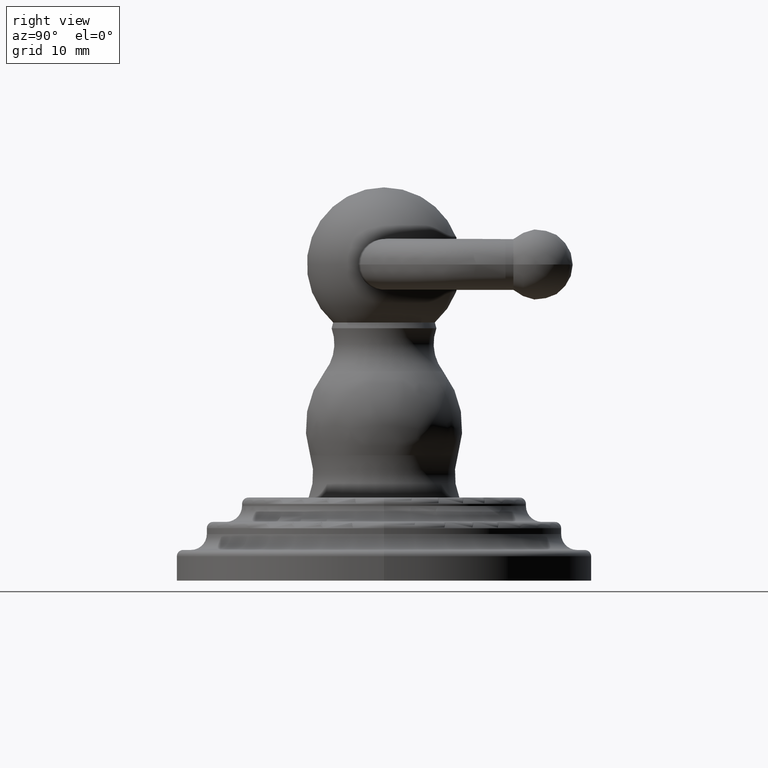
[diagram: clean part render]
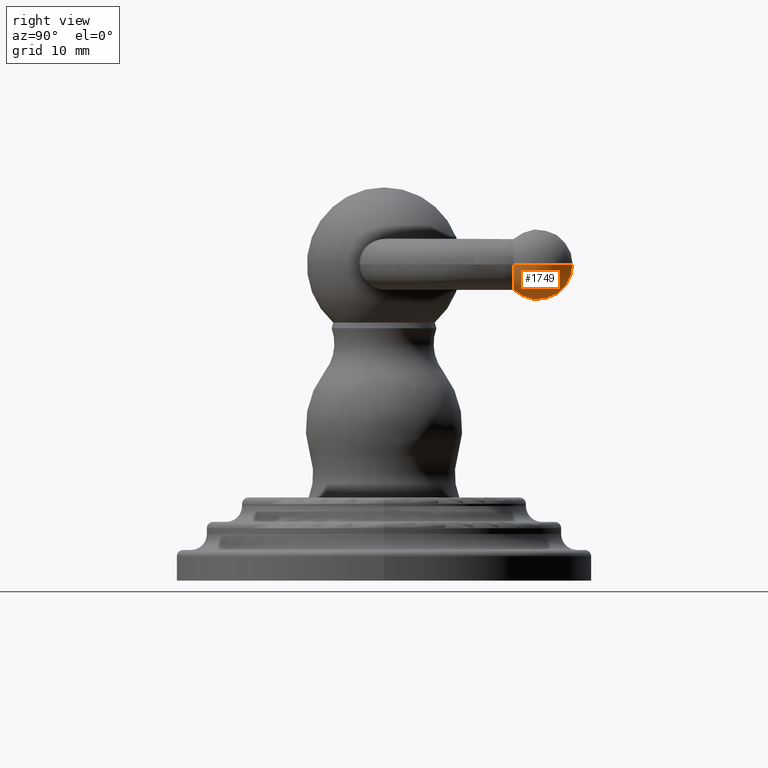
[diagram: same view with one face highlighted and labeled with its STEP entity id]
A machine part, right view. The second image highlights one B-rep face of the part: STEP entity #1749.
In plain terms, the highlighted spherical surface has radius 5.4991 mm.
Its self-contained STEP definition (entity closure, byte-faithful):
#738=CARTESIAN_POINT('',(1.1905E0,7.969537109181E-1,1.947E0));
#739=DIRECTION('',(0.E0,1.E0,0.E0));
#740=DIRECTION('',(1.E0,0.E0,0.E0));
#741=AXIS2_PLACEMENT_3D('',#738,#739,#740);
#761=CARTESIAN_POINT('',(1.1905E0,9.455E-1,1.947E0));
#762=DIRECTION('',(0.E0,0.E0,1.E0));
#763=DIRECTION('',(7.274826789838E-1,-6.861260465676E-1,0.E0));
#764=AXIS2_PLACEMENT_3D('',#761,#762,#763);
#769=CARTESIAN_POINT('',(1.1905E0,9.455E-1,1.947E0));
#770=DIRECTION('',(0.E0,0.E0,-1.E0));
#771=DIRECTION('',(-7.274826789838E-1,-6.861260465676E-1,0.E0));
#772=AXIS2_PLACEMENT_3D('',#769,#770,#771);
#948=CARTESIAN_POINT('',(1.033E0,7.969537109181E-1,1.947E0));
#949=CARTESIAN_POINT('',(1.348E0,7.969537109181E-1,1.947E0));
#950=VERTEX_POINT('',#948);
#951=VERTEX_POINT('',#949);
#952=CARTESIAN_POINT('',(1.1905E0,1.162E0,1.947E0));
#953=VERTEX_POINT('',#952);
#1737=CARTESIAN_POINT('',(1.1905E0,9.455E-1,1.947E0));
#1738=DIRECTION('',(0.E0,-1.E0,0.E0));
#1739=DIRECTION('',(-1.E0,0.E0,0.E0));
#1740=AXIS2_PLACEMENT_3D('',#1737,#1738,#1739);
#1741=SPHERICAL_SURFACE('',#1740,2.165E-1);
#1742=ORIENTED_EDGE('',*,*,#1715,.F.);
#1744=ORIENTED_EDGE('',*,*,#1743,.T.);
#1746=ORIENTED_EDGE('',*,*,#1745,.F.);
#1747=EDGE_LOOP('',(#1742,#1744,#1746));
#1748=FACE_OUTER_BOUND('',#1747,.F.);
#742=CIRCLE('',#741,1.575E-1);
#765=CIRCLE('',#764,2.165E-1);
#773=CIRCLE('',#772,2.165E-1);
#1715=EDGE_CURVE('',#951,#950,#742,.T.);
#1743=EDGE_CURVE('',#951,#953,#765,.T.);
#1745=EDGE_CURVE('',#950,#953,#773,.T.);
#1749=ADVANCED_FACE('',(#1748),#1741,.T.);